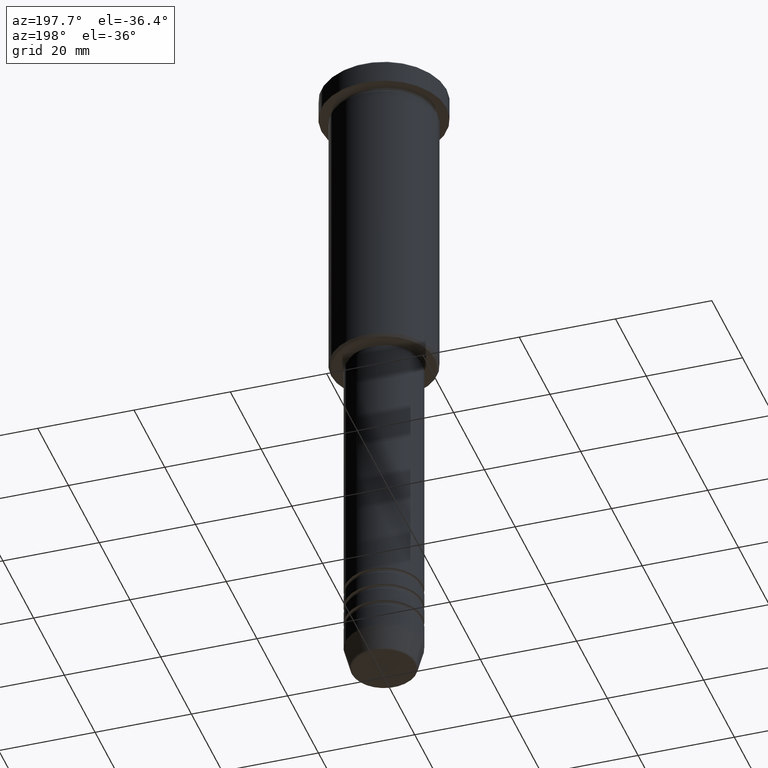
[diagram: clean part render]
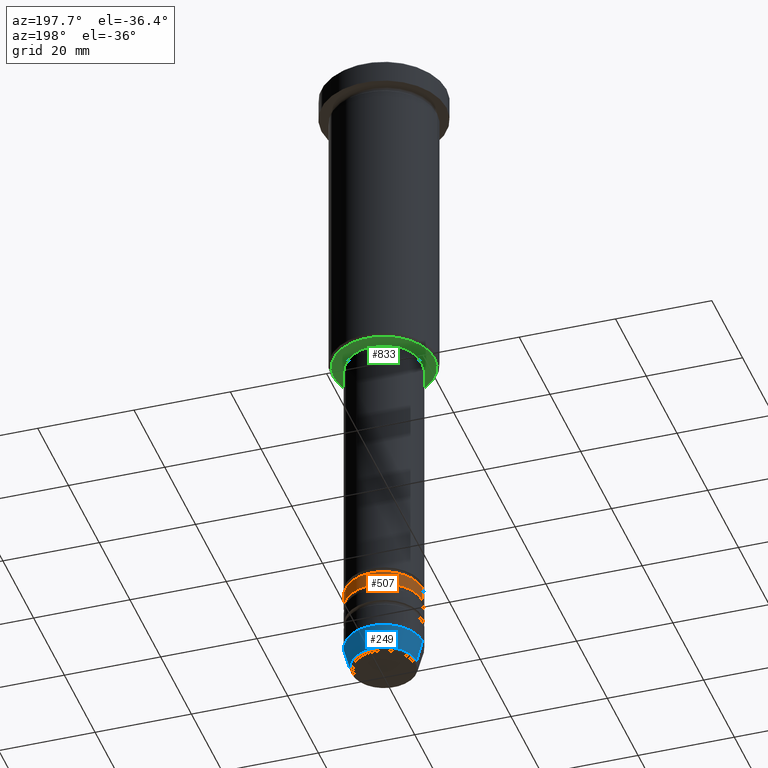
[diagram: same view with three faces highlighted in distinct colors, each labeled with its STEP entity id]
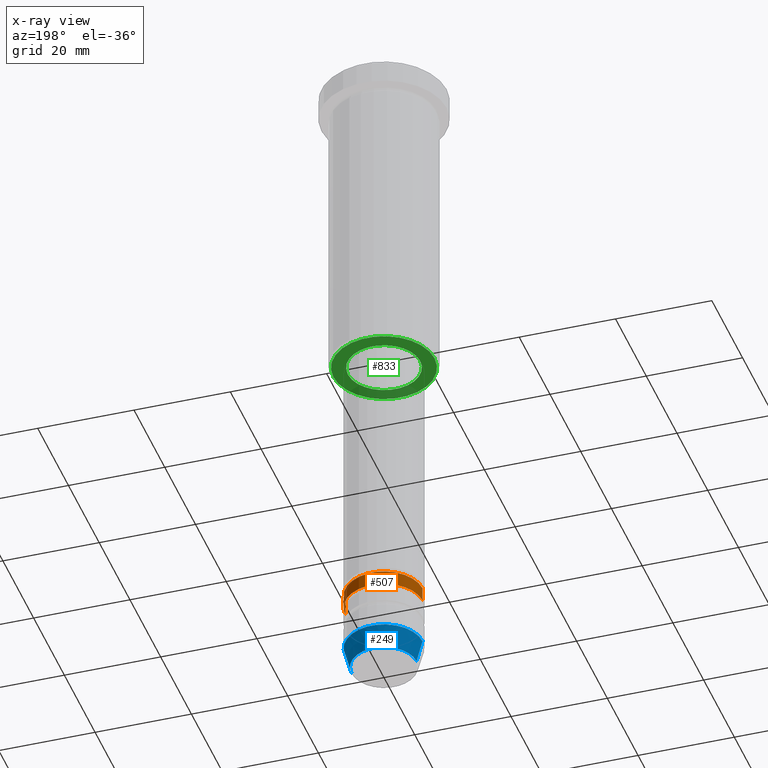
[diagram: x-ray of the same camera — body ghosted, the three highlighted faces saturated]
A machine part, auxiliary view with three faces highlighted in distinct colors.
The next image is the same camera in x-ray (body ghosted, the three faces saturated) — at least one of them is partly hidden behind the body in this view.
Their STEP definitions:

[orange] entity #507 — the highlighted cylindrical surface (partial cylindrical patch) has radius 8 mm, axis along (-0, -0, 1).
#53 = DIRECTION ( 'NONE',  ( 1.000000000000000000, 0.000000000000000000, 0.000000000000000000 ) ) ;
#87 = VERTEX_POINT ( 'NONE', #123 ) ;
#99 = CARTESIAN_POINT ( 'NONE',  ( -8.000000000000001776, 9.797174393178827630E-16, 0.000000000000000000 ) ) ;
#112 = DIRECTION ( 'NONE',  ( -0.000000000000000000, -0.000000000000000000, 1.000000000000000000 ) ) ;
#122 = CIRCLE ( 'NONE', #603, 8.000000000000003553 ) ;
#123 = CARTESIAN_POINT ( 'NONE',  ( 8.000000000000000000, 0.000000000000000000, -122.0000000000000000 ) ) ;
#147 = CARTESIAN_POINT ( 'NONE',  ( 0.000000000000000000, 0.000000000000000000, -125.0000000000000000 ) ) ;
#181 = VERTEX_POINT ( 'NONE', #651 ) ;
#199 = DIRECTION ( 'NONE',  ( -0.000000000000000000, -0.000000000000000000, 1.000000000000000000 ) ) ;
#280 = EDGE_CURVE ( 'NONE', #181, #449, #465, .T. ) ;
#289 = DIRECTION ( 'NONE',  ( -0.000000000000000000, -0.000000000000000000, 1.000000000000000000 ) ) ;
#306 = CARTESIAN_POINT ( 'NONE',  ( 0.000000000000000000, 0.000000000000000000, 0.000000000000000000 ) ) ;
#340 = FACE_OUTER_BOUND ( 'NONE', #677, .T. ) ;
#361 = ORIENTED_EDGE ( 'NONE', *, *, #455, .F. ) ;
#366 = AXIS2_PLACEMENT_3D ( 'NONE', #306, #112, #475 ) ;
#449 = VERTEX_POINT ( 'NONE', #667 ) ;
#455 = EDGE_CURVE ( 'NONE', #1128, #87, #770, .T. ) ;
#465 = LINE ( 'NONE', #99, #739 ) ;
#475 = DIRECTION ( 'NONE',  ( 1.000000000000000000, 0.000000000000000000, 0.000000000000000000 ) ) ;
#486 = DIRECTION ( 'NONE',  ( -0.000000000000000000, -0.000000000000000000, 1.000000000000000000 ) ) ;
#507 = ADVANCED_FACE ( 'NONE', ( #340 ), #936, .T. ) ;
#515 = CARTESIAN_POINT ( 'NONE',  ( 0.000000000000000000, 0.000000000000000000, -122.0000000000000000 ) ) ;
#575 = DIRECTION ( 'NONE',  ( 1.000000000000000000, 0.000000000000000000, 0.000000000000000000 ) ) ;
#581 = CARTESIAN_POINT ( 'NONE',  ( 8.000000000000001776, 0.000000000000000000, 0.000000000000000000 ) ) ;
#582 = AXIS2_PLACEMENT_3D ( 'NONE', #515, #289, #575 ) ;
#603 = AXIS2_PLACEMENT_3D ( 'NONE', #147, #1142, #53 ) ;
#651 = CARTESIAN_POINT ( 'NONE',  ( -8.000000000000003553, 9.797174393178829602E-16, -125.0000000000000000 ) ) ;
#667 = CARTESIAN_POINT ( 'NONE',  ( -8.000000000000000000, 9.797174393178827630E-16, -122.0000000000000000 ) ) ;
#677 = EDGE_LOOP ( 'NONE', ( #970, #1101, #1004, #361 ) ) ;
#684 = CIRCLE ( 'NONE', #582, 8.000000000000000000 ) ;
#739 = VECTOR ( 'NONE', #199, 1000.000000000000000 ) ;
#764 = EDGE_CURVE ( 'NONE', #87, #449, #684, .T. ) ;
#770 = LINE ( 'NONE', #581, #1092 ) ;
#894 = EDGE_CURVE ( 'NONE', #1128, #181, #122, .T. ) ;
#936 = CYLINDRICAL_SURFACE ( 'NONE', #366, 8.000000000000001776 ) ;
#970 = ORIENTED_EDGE ( 'NONE', *, *, #894, .T. ) ;
#1004 = ORIENTED_EDGE ( 'NONE', *, *, #764, .F. ) ;
#1092 = VECTOR ( 'NONE', #486, 1000.000000000000000 ) ;
#1101 = ORIENTED_EDGE ( 'NONE', *, *, #280, .T. ) ;
#1106 = CARTESIAN_POINT ( 'NONE',  ( 8.000000000000003553, 0.000000000000000000, -125.0000000000000000 ) ) ;
#1128 = VERTEX_POINT ( 'NONE', #1106 ) ;
#1142 = DIRECTION ( 'NONE',  ( -0.000000000000000000, -0.000000000000000000, 1.000000000000000000 ) ) ;

[blue] entity #249 — the highlighted conical surface has half-angle 15 deg.
#2 = CARTESIAN_POINT ( 'NONE',  ( 8.000000000000000000, 0.000000000000000000, -135.0000000000000000 ) ) ;
#13 = LINE ( 'NONE', #949, #328 ) ;
#79 = DIRECTION ( 'NONE',  ( -0.000000000000000000, -0.000000000000000000, 1.000000000000000000 ) ) ;
#85 = EDGE_CURVE ( 'NONE', #765, #563, #13, .T. ) ;
#120 = AXIS2_PLACEMENT_3D ( 'NONE', #1048, #1042, #129 ) ;
#129 = DIRECTION ( 'NONE',  ( 1.000000000000000000, 0.000000000000000000, 0.000000000000000000 ) ) ;
#148 = CARTESIAN_POINT ( 'NONE',  ( -6.759553456999436882, 9.037619948979304241E-16, -139.6294095225512706 ) ) ;
#184 = DIRECTION ( 'NONE',  ( 1.000000000000000000, 0.000000000000000000, 0.000000000000000000 ) ) ;
#229 = VERTEX_POINT ( 'NONE', #148 ) ;
#249 = ADVANCED_FACE ( 'NONE', ( #649 ), #964, .T. ) ;
#321 = LINE ( 'NONE', #393, #998 ) ;
#328 = VECTOR ( 'NONE', #932, 1000.000000000000114 ) ;
#375 = EDGE_LOOP ( 'NONE', ( #456, #1032, #734, #525 ) ) ;
#380 = AXIS2_PLACEMENT_3D ( 'NONE', #918, #1171, #1085 ) ;
#393 = CARTESIAN_POINT ( 'NONE',  ( -8.000000000000000000, 9.797174393178825657E-16, -135.0000000000000000 ) ) ;
#416 = EDGE_CURVE ( 'NONE', #563, #947, #601, .T. ) ;
#456 = ORIENTED_EDGE ( 'NONE', *, *, #732, .T. ) ;
#470 = CARTESIAN_POINT ( 'NONE',  ( 0.000000000000000000, 0.000000000000000000, -135.0000000000000000 ) ) ;
#525 = ORIENTED_EDGE ( 'NONE', *, *, #85, .F. ) ;
#563 = VERTEX_POINT ( 'NONE', #2 ) ;
#586 = CARTESIAN_POINT ( 'NONE',  ( -8.000000000000000000, 9.797174393178825657E-16, -135.0000000000000000 ) ) ;
#593 = DIRECTION ( 'NONE',  ( -0.2588190451025214611, 3.169619151431774186E-17, 0.9659258262890679791 ) ) ;
#601 = CIRCLE ( 'NONE', #120, 8.000000000000000000 ) ;
#649 = FACE_OUTER_BOUND ( 'NONE', #375, .T. ) ;
#721 = AXIS2_PLACEMENT_3D ( 'NONE', #470, #79, #184 ) ;
#732 = EDGE_CURVE ( 'NONE', #765, #229, #1093, .T. ) ;
#734 = ORIENTED_EDGE ( 'NONE', *, *, #416, .F. ) ;
#765 = VERTEX_POINT ( 'NONE', #822 ) ;
#822 = CARTESIAN_POINT ( 'NONE',  ( 6.759553456999436882, 0.000000000000000000, -139.6294095225512706 ) ) ;
#918 = CARTESIAN_POINT ( 'NONE',  ( 0.000000000000000000, 0.000000000000000000, -139.6294095225512706 ) ) ;
#932 = DIRECTION ( 'NONE',  ( 0.2588190451025214611, 0.000000000000000000, 0.9659258262890679791 ) ) ;
#947 = VERTEX_POINT ( 'NONE', #586 ) ;
#949 = CARTESIAN_POINT ( 'NONE',  ( 8.000000000000000000, 0.000000000000000000, -135.0000000000000000 ) ) ;
#961 = EDGE_CURVE ( 'NONE', #229, #947, #321, .T. ) ;
#964 = CONICAL_SURFACE ( 'NONE', #721, 8.000000000000000000, 0.2617993877991502405 ) ;
#998 = VECTOR ( 'NONE', #593, 1000.000000000000114 ) ;
#1032 = ORIENTED_EDGE ( 'NONE', *, *, #961, .T. ) ;
#1042 = DIRECTION ( 'NONE',  ( -0.000000000000000000, -0.000000000000000000, 1.000000000000000000 ) ) ;
#1048 = CARTESIAN_POINT ( 'NONE',  ( 0.000000000000000000, 0.000000000000000000, -135.0000000000000000 ) ) ;
#1085 = DIRECTION ( 'NONE',  ( 1.000000000000000000, 0.000000000000000000, 0.000000000000000000 ) ) ;
#1093 = CIRCLE ( 'NONE', #380, 6.759553456999436882 ) ;
#1171 = DIRECTION ( 'NONE',  ( -0.000000000000000000, -0.000000000000000000, 1.000000000000000000 ) ) ;

[green] entity #833 — the highlighted planar face has unit normal (0, 0, -1).
#37 = VERTEX_POINT ( 'NONE', #798 ) ;
#55 = DIRECTION ( 'NONE',  ( -1.000000000000000000, 0.000000000000000000, -0.000000000000000000 ) ) ;
#100 = AXIS2_PLACEMENT_3D ( 'NONE', #973, #624, #55 ) ;
#108 = CARTESIAN_POINT ( 'NONE',  ( 10.49999999999993960, 0.000000000000000000, -66.00000000000000000 ) ) ;
#209 = DIRECTION ( 'NONE',  ( -1.000000000000000000, 0.000000000000000000, 0.000000000000000000 ) ) ;
#239 = VERTEX_POINT ( 'NONE', #877 ) ;
#254 = ORIENTED_EDGE ( 'NONE', *, *, #1094, .T. ) ;
#268 = DIRECTION ( 'NONE',  ( 1.000000000000000000, 0.000000000000000000, 0.000000000000000000 ) ) ;
#287 = AXIS2_PLACEMENT_3D ( 'NONE', #744, #543, #268 ) ;
#298 = EDGE_CURVE ( 'NONE', #1096, #239, #311, .T. ) ;
#311 = CIRCLE ( 'NONE', #617, 7.500000000000000000 ) ;
#406 = EDGE_CURVE ( 'NONE', #668, #37, #887, .T. ) ;
#441 = CARTESIAN_POINT ( 'NONE',  ( 0.000000000000000000, 0.000000000000000000, -66.00000000000000000 ) ) ;
#450 = CARTESIAN_POINT ( 'NONE',  ( -7.500000000000000000, 9.184850993605147944E-16, -66.00000000000000000 ) ) ;
#509 = EDGE_CURVE ( 'NONE', #37, #668, #1039, .T. ) ;
#543 = DIRECTION ( 'NONE',  ( -0.000000000000000000, -0.000000000000000000, 1.000000000000000000 ) ) ;
#609 = PLANE ( 'NONE',  #100 ) ;
#617 = AXIS2_PLACEMENT_3D ( 'NONE', #441, #831, #1066 ) ;
#624 = DIRECTION ( 'NONE',  ( 0.000000000000000000, 0.000000000000000000, -1.000000000000000000 ) ) ;
#650 = EDGE_LOOP ( 'NONE', ( #254, #1008 ) ) ;
#668 = VERTEX_POINT ( 'NONE', #108 ) ;
#687 = CARTESIAN_POINT ( 'NONE',  ( 0.000000000000000000, 0.000000000000000000, -66.00000000000000000 ) ) ;
#724 = FACE_OUTER_BOUND ( 'NONE', #917, .T. ) ;
#744 = CARTESIAN_POINT ( 'NONE',  ( 0.000000000000000000, 0.000000000000000000, -66.00000000000000000 ) ) ;
#752 = ORIENTED_EDGE ( 'NONE', *, *, #406, .T. ) ;
#759 = CARTESIAN_POINT ( 'NONE',  ( 0.000000000000000000, 0.000000000000000000, -66.00000000000000000 ) ) ;
#798 = CARTESIAN_POINT ( 'NONE',  ( -10.49999999999993960, 1.316495309083401068E-15, -66.00000000000000000 ) ) ;
#831 = DIRECTION ( 'NONE',  ( -0.000000000000000000, -0.000000000000000000, 1.000000000000000000 ) ) ;
#833 = ADVANCED_FACE ( 'NONE', ( #724, #1078 ), #609, .T. ) ;
#872 = DIRECTION ( 'NONE',  ( -1.000000000000000000, 0.000000000000000000, 0.000000000000000000 ) ) ;
#877 = CARTESIAN_POINT ( 'NONE',  ( 7.500000000000000000, 0.000000000000000000, -66.00000000000000000 ) ) ;
#884 = CIRCLE ( 'NONE', #287, 7.500000000000000000 ) ;
#887 = CIRCLE ( 'NONE', #1020, 10.49999999999993960 ) ;
#917 = EDGE_LOOP ( 'NONE', ( #752, #930 ) ) ;
#930 = ORIENTED_EDGE ( 'NONE', *, *, #509, .T. ) ;
#973 = CARTESIAN_POINT ( 'NONE',  ( 0.000000000000000000, 11.00000000000000000, -66.00000000000000000 ) ) ;
#1008 = ORIENTED_EDGE ( 'NONE', *, *, #298, .T. ) ;
#1020 = AXIS2_PLACEMENT_3D ( 'NONE', #687, #1121, #872 ) ;
#1029 = DIRECTION ( 'NONE',  ( 0.000000000000000000, 0.000000000000000000, -1.000000000000000000 ) ) ;
#1039 = CIRCLE ( 'NONE', #1169, 10.49999999999993960 ) ;
#1066 = DIRECTION ( 'NONE',  ( 1.000000000000000000, 0.000000000000000000, 0.000000000000000000 ) ) ;
#1078 = FACE_BOUND ( 'NONE', #650, .T. ) ;
#1094 = EDGE_CURVE ( 'NONE', #239, #1096, #884, .T. ) ;
#1096 = VERTEX_POINT ( 'NONE', #450 ) ;
#1121 = DIRECTION ( 'NONE',  ( 0.000000000000000000, 0.000000000000000000, -1.000000000000000000 ) ) ;
#1169 = AXIS2_PLACEMENT_3D ( 'NONE', #759, #1029, #209 ) ;